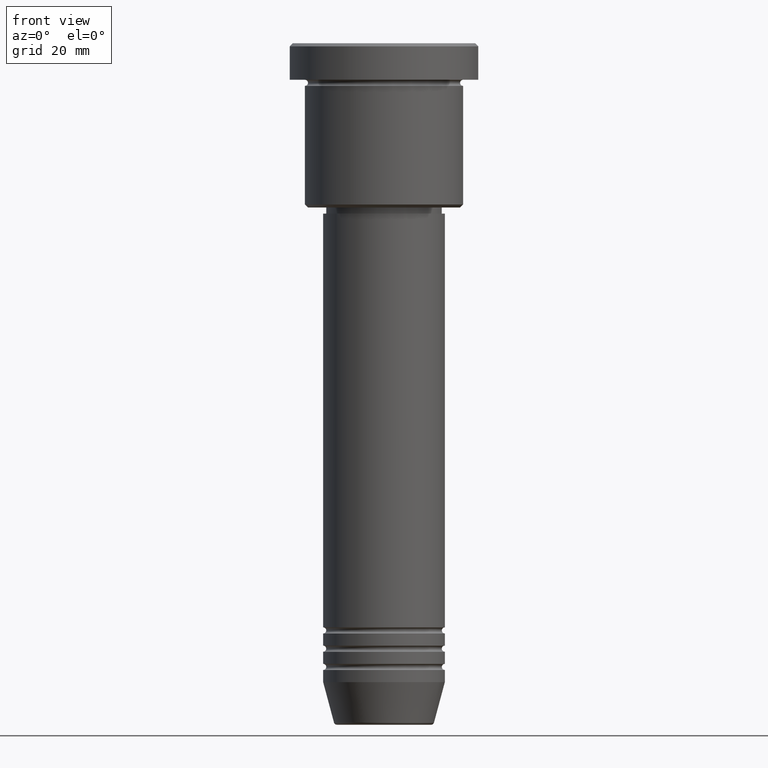
[diagram: clean part render]
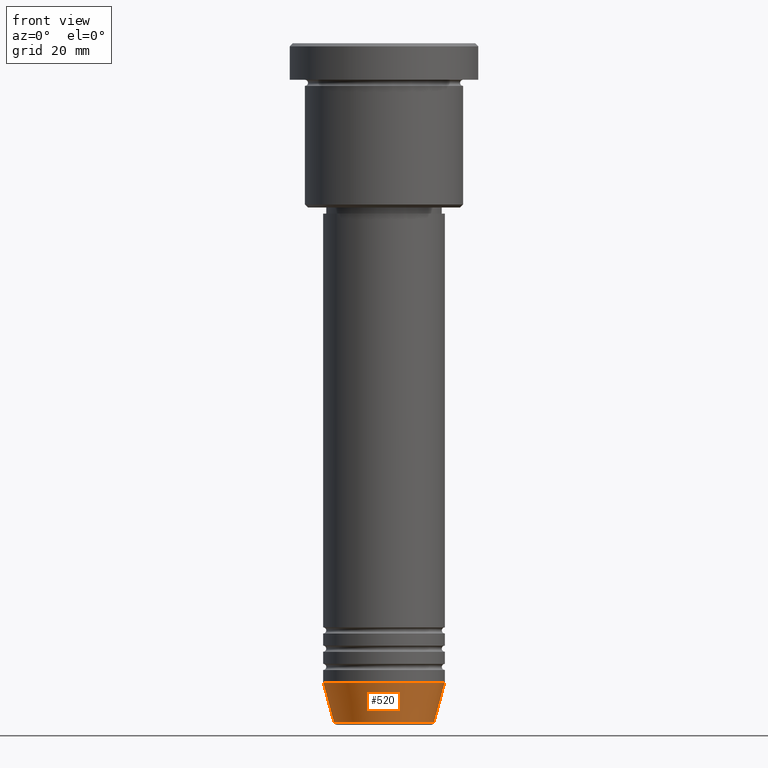
[diagram: same view with one face highlighted and labeled with its STEP entity id]
A machine part, front view. The second image highlights one B-rep face of the part: STEP entity #520.
In plain terms, the highlighted conical surface has half-angle 15 deg.
Its self-contained STEP definition (entity closure, byte-faithful):
#5 = EDGE_CURVE ( 'NONE', #1093, #212, #1105, .T. ) ;
#16 = CARTESIAN_POINT ( 'NONE',  ( 10.00000000000000000, 0.000000000000000000, -105.0000000000000142 ) ) ;
#59 = DIRECTION ( 'NONE',  ( -0.000000000000000000, -0.000000000000000000, 1.000000000000000000 ) ) ;
#68 = CARTESIAN_POINT ( 'NONE',  ( 0.000000000000000000, 0.000000000000000000, -105.0000000000000142 ) ) ;
#78 = VERTEX_POINT ( 'NONE', #640 ) ;
#100 = EDGE_CURVE ( 'NONE', #78, #1093, #1178, .T. ) ;
#212 = VERTEX_POINT ( 'NONE', #483 ) ;
#226 = CARTESIAN_POINT ( 'NONE',  ( 0.000000000000000000, 0.000000000000000000, -105.0000000000000142 ) ) ;
#233 = CONICAL_SURFACE ( 'NONE', #1060, 10.00000000000000000, 0.2617993877991500740 ) ;
#270 = VECTOR ( 'NONE', #980, 1000.000000000000000 ) ;
#335 = CARTESIAN_POINT ( 'NONE',  ( 8.223655072137191269, 0.000000000000000000, -111.6294095225512706 ) ) ;
#359 = ORIENTED_EDGE ( 'NONE', *, *, #5, .T. ) ;
#404 = CIRCLE ( 'NONE', #1174, 10.00000000000000000 ) ;
#410 = AXIS2_PLACEMENT_3D ( 'NONE', #1131, #1023, #862 ) ;
#426 = LINE ( 'NONE', #874, #270 ) ;
#483 = CARTESIAN_POINT ( 'NONE',  ( 10.00000000000000000, 0.000000000000000000, -105.0000000000000142 ) ) ;
#505 = EDGE_CURVE ( 'NONE', #998, #212, #404, .T. ) ;
#506 = DIRECTION ( 'NONE',  ( 1.000000000000000000, 0.000000000000000000, 0.000000000000000000 ) ) ;
#513 = ORIENTED_EDGE ( 'NONE', *, *, #1009, .F. ) ;
#520 = ADVANCED_FACE ( 'NONE', ( #882 ), #233, .T. ) ;
#640 = CARTESIAN_POINT ( 'NONE',  ( -8.223655072137191269, 1.115877042642912054E-15, -111.6294095225512706 ) ) ;
#726 = ORIENTED_EDGE ( 'NONE', *, *, #100, .T. ) ;
#762 = EDGE_LOOP ( 'NONE', ( #513, #726, #359, #875 ) ) ;
#777 = DIRECTION ( 'NONE',  ( -0.000000000000000000, -0.000000000000000000, 1.000000000000000000 ) ) ;
#851 = VECTOR ( 'NONE', #1007, 1000.000000000000000 ) ;
#862 = DIRECTION ( 'NONE',  ( 1.000000000000000000, 0.000000000000000000, 0.000000000000000000 ) ) ;
#863 = CARTESIAN_POINT ( 'NONE',  ( -10.00000000000000000, 1.224646799147353256E-15, -105.0000000000000142 ) ) ;
#874 = CARTESIAN_POINT ( 'NONE',  ( -10.00000000000000000, 1.224646799147353256E-15, -105.0000000000000142 ) ) ;
#875 = ORIENTED_EDGE ( 'NONE', *, *, #505, .F. ) ;
#882 = FACE_OUTER_BOUND ( 'NONE', #762, .T. ) ;
#980 = DIRECTION ( 'NONE',  ( -0.2588190451025213501, 3.169619151431772337E-17, 0.9659258262890680902 ) ) ;
#998 = VERTEX_POINT ( 'NONE', #863 ) ;
#1007 = DIRECTION ( 'NONE',  ( 0.2588190451025213501, 0.000000000000000000, 0.9659258262890680902 ) ) ;
#1009 = EDGE_CURVE ( 'NONE', #78, #998, #426, .T. ) ;
#1023 = DIRECTION ( 'NONE',  ( -0.000000000000000000, -0.000000000000000000, 1.000000000000000000 ) ) ;
#1060 = AXIS2_PLACEMENT_3D ( 'NONE', #68, #777, #1153 ) ;
#1093 = VERTEX_POINT ( 'NONE', #335 ) ;
#1105 = LINE ( 'NONE', #16, #851 ) ;
#1131 = CARTESIAN_POINT ( 'NONE',  ( 0.000000000000000000, 0.000000000000000000, -111.6294095225512706 ) ) ;
#1153 = DIRECTION ( 'NONE',  ( 1.000000000000000000, 0.000000000000000000, 0.000000000000000000 ) ) ;
#1174 = AXIS2_PLACEMENT_3D ( 'NONE', #226, #59, #506 ) ;
#1178 = CIRCLE ( 'NONE', #410, 8.223655072137191269 ) ;